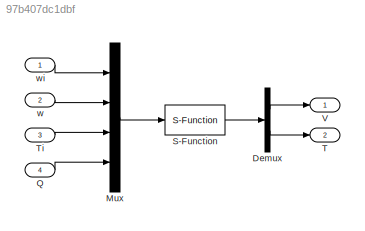
MODEL slx_97b407dc1dbf
KIND model
CONFIG AbsTol = auto
CONFIG EnableMultiTasking = off
CONFIG FixedStep = auto
CONFIG MaxStep = auto
CONFIG MinStep = auto
CONFIG RelTol = 1e-3
CONFIG SampleTimeConstraint = Unconstrained
CONFIG SolverName = ode45
CONFIG StartTime = 0.0
CONFIG StopTime = 10.0
BLOCK [Demux] Demux
  Outputs = 2
  Ports = [1, 2]
BLOCK [Mux] Mux
  DisplayOption = bar
  Ports = [4, 1]
BLOCK [Inport] Q
  Port = 4
BLOCK [S-Function] S-Function
  EnableBusSupport = off
  FunctionName = zbiornik_sfcn
  Parameters = V0 T0
  Ports = [1, 1]
  SFcnIsStateOwnerBlock = off
  SFunctionDeploymentMode = off
BLOCK [Outport] T
  Port = 2
BLOCK [Inport] Ti
  Port = 3
BLOCK [Outport] V
BLOCK [Inport] w
  Port = 2
BLOCK [Inport] wi
LINE Demux:1 -> V:1
LINE Demux:2 -> T:1
LINE Mux:1 -> S-Function:1
LINE Q:1 -> Mux:4
LINE S-Function:1 -> Demux:1
LINE Ti:1 -> Mux:3
LINE w:1 -> Mux:2
LINE wi:1 -> Mux:1
